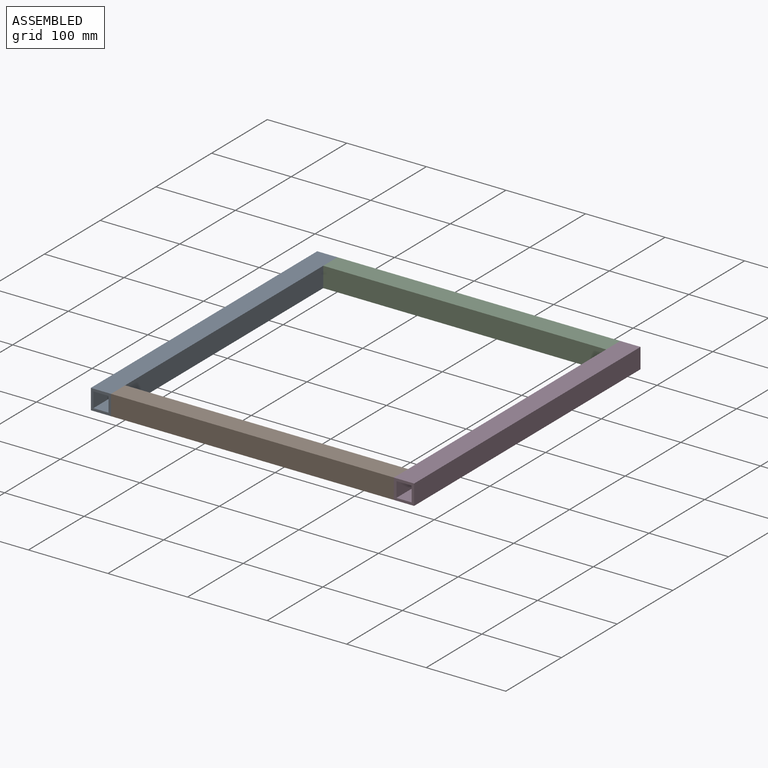
[diagram: assembled view]
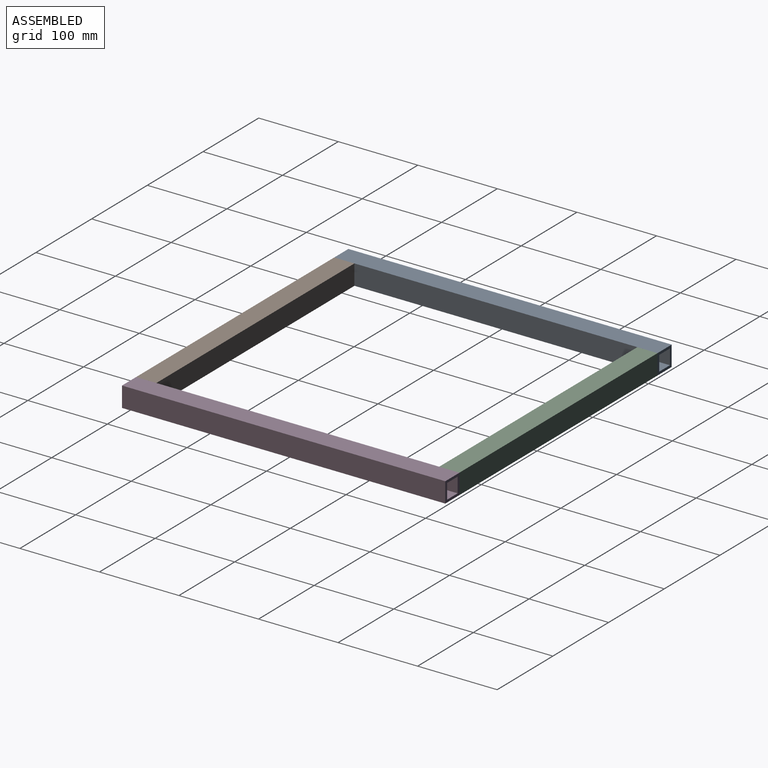
[diagram: assembled view, second angle]
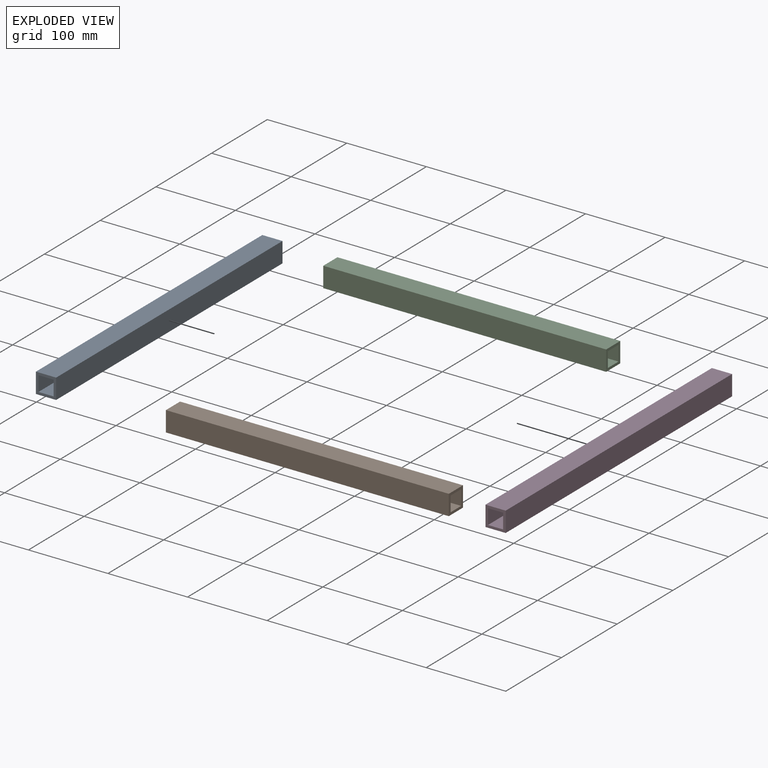
[diagram: exploded view]
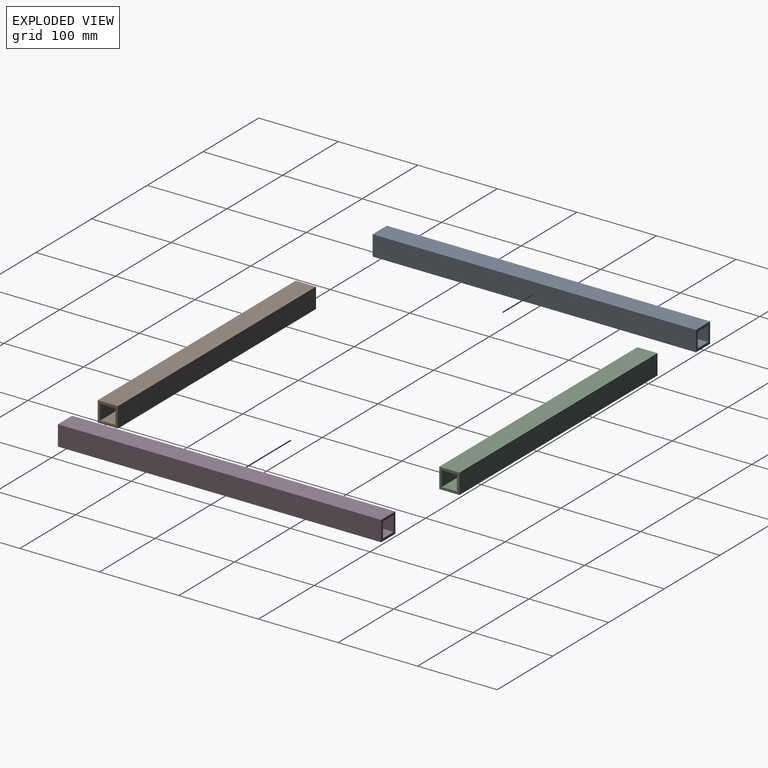
[diagram: exploded view, second angle]
ASSEMBLY  parts=4 mates=3
PART A: 10 faces, bbox 25.4x406.4x25.4 mm
  f0: plane 406.4x19.05mm, normal (-1,0,0), area 7741.9mm2, adj f1,f7,f8,f9
  f1: plane 406.4x19.05mm, normal (0,0,1), area 7741.9mm2, adj f0,f2,f8,f9
  f2: plane 406.4x19.05mm, normal (1,0,0), area 7741.9mm2, adj f1,f7,f8,f9
  f3: plane 406.4x25.4mm, normal (1,0,0), area 10322.6mm2, adj f4,f6,f8,f9
  f4: plane 406.4x25.4mm, normal (0,0,1), area 10322.6mm2, adj f3,f5,f8,f9
  f5: plane 406.4x25.4mm, normal (-1,0,0), area 10322.6mm2, adj f4,f6,f8,f9
  f6: plane 406.4x25.4mm, normal (0,0,-1), area 10322.6mm2, adj f3,f5,f8,f9
  f7: plane 406.4x19.05mm, normal (0,0,-1), area 7741.9mm2, adj f0,f2,f8,f9
  f8: plane 25.4x25.4mm, normal (0,-1,0), area 282.3mm2, adj f0,f1,f2,f3,f4,f5,f6,f7
  f9: plane 25.4x25.4mm, normal (0,1,0), area 282.3mm2, adj f0,f1,f2,f3,f4,f5,f6,f7
PART B: 10 faces, bbox 25.4x355.6x25.4 mm
  f0: plane 355.6x19.05mm, normal (-1,0,0), area 6774.2mm2, adj f1,f7,f8,f9
  f1: plane 355.6x19.05mm, normal (0,0,1), area 6774.2mm2, adj f0,f2,f8,f9
  f2: plane 355.6x19.05mm, normal (1,0,0), area 6774.2mm2, adj f1,f7,f8,f9
  f3: plane 355.6x25.4mm, normal (1,0,0), area 9032.2mm2, adj f4,f6,f8,f9
  f4: plane 355.6x25.4mm, normal (0,0,1), area 9032.2mm2, adj f3,f5,f8,f9
  f5: plane 355.6x25.4mm, normal (-1,0,0), area 9032.2mm2, adj f4,f6,f8,f9
  f6: plane 355.6x25.4mm, normal (0,0,-1), area 9032.2mm2, adj f3,f5,f8,f9
  f7: plane 355.6x19.05mm, normal (0,0,-1), area 6774.2mm2, adj f0,f2,f8,f9
  f8: plane 25.4x25.4mm, normal (0,-1,0), area 282.3mm2, adj f0,f1,f2,f3,f4,f5,f6,f7
  f9: plane 25.4x25.4mm, normal (0,1,0), area 282.3mm2, adj f0,f1,f2,f3,f4,f5,f6,f7
PART C: same geometry as B
PART D: same geometry as A
PLACE A t=(-219.26,106.87,-182.38)mm
PLACE B rot(axis=(0,0,-1),90deg) t=(149.04,-286.83,-182.38)mm
PLACE C rot(axis=(0,0,-1),90deg) t=(149.04,94.17,-182.38)mm
PLACE D t=(161.74,106.87,-182.38)mm
MATE fastened B.f8 <-> A.f3  axis (-1,0,0) through (-206.56,-299.53,-169.68)mm
MATE fastened B.f9 <-> D.f5  axis (1,0,0) through (149.04,-299.53,-169.68)mm
MATE fastened C.f8 <-> A.f3  axis (-1,0,0) through (-206.56,106.87,-169.68)mm
